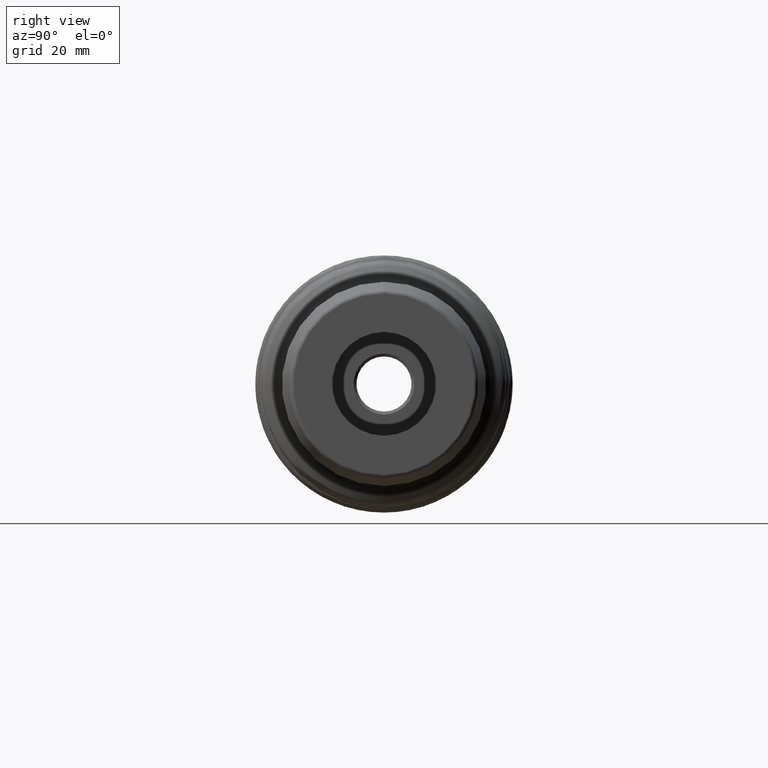
[diagram: clean part render]
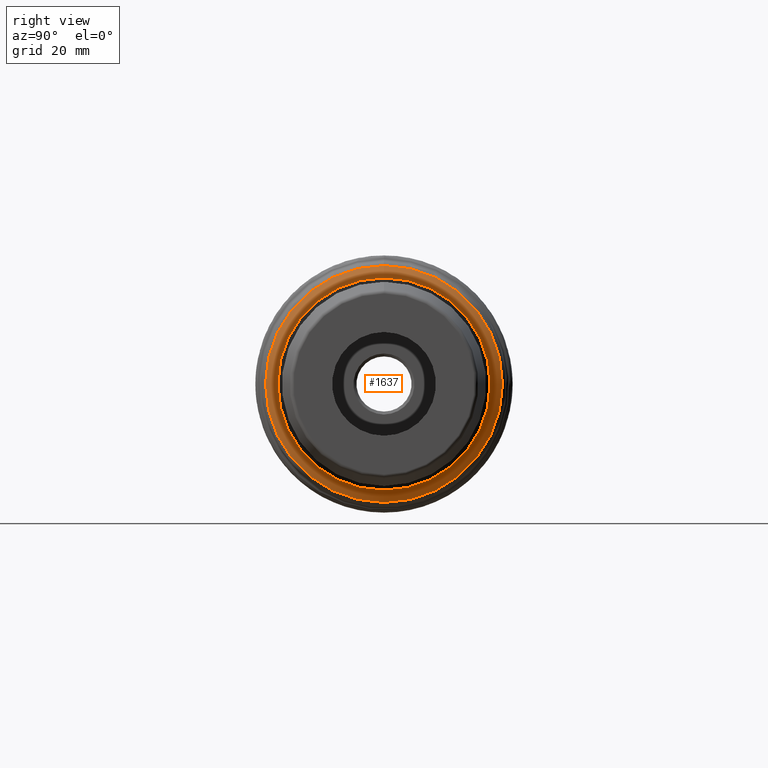
[diagram: same view with one face highlighted and labeled with its STEP entity id]
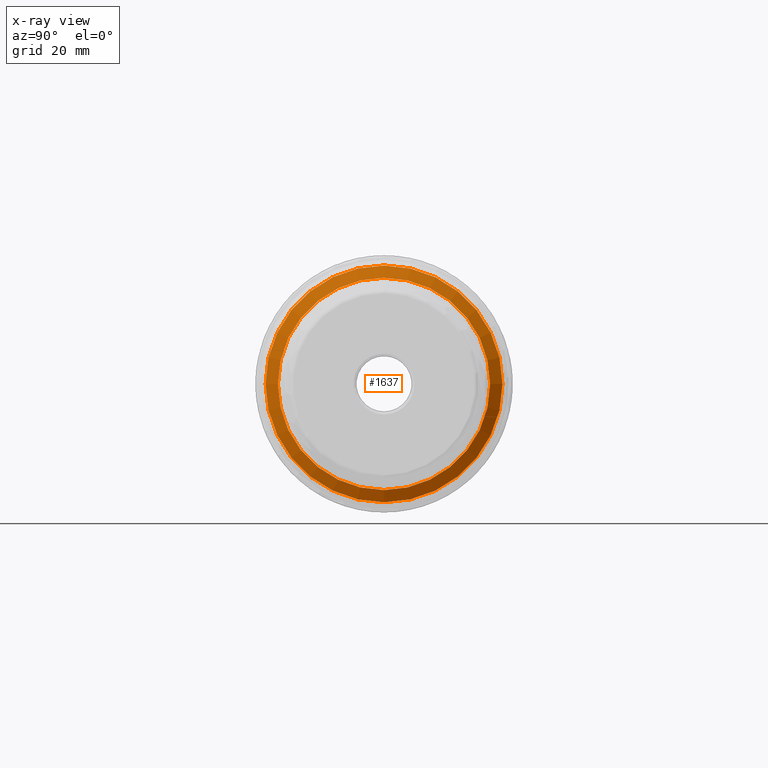
[diagram: x-ray of the same camera — body ghosted, the highlighted face saturated]
A machine part, right view. The second image highlights one B-rep face of the part: STEP entity #1637.
The next image is the same camera in x-ray: the body ghosted, the highlighted face saturated — about 0% of this face is hidden behind the body in this view.
In plain terms, the highlighted conical surface has half-angle 60 deg.
Its self-contained STEP definition (entity closure, byte-faithful):
#116=CONICAL_SURFACE('',#1758,27.5,1.0471975511966);
#136=FACE_OUTER_BOUND('',#227,.T.);
#227=EDGE_LOOP('',(#1095,#1096,#1097,#1098,#1099,#1100));
#329=LINE('',#2697,#399);
#399=VECTOR('',#2039,27.5);
#473=CIRCLE('',#1753,26.);
#477=CIRCLE('',#1757,26.);
#478=CIRCLE('',#1759,29.);
#479=CIRCLE('',#1760,29.);
#628=VERTEX_POINT('',#2686);
#629=VERTEX_POINT('',#2687);
#632=VERTEX_POINT('',#2696);
#633=VERTEX_POINT('',#2698);
#816=EDGE_CURVE('',#628,#629,#473,.T.);
#820=EDGE_CURVE('',#629,#628,#477,.T.);
#821=EDGE_CURVE('',#629,#632,#329,.T.);
#822=EDGE_CURVE('',#633,#632,#478,.T.);
#823=EDGE_CURVE('',#632,#633,#479,.T.);
#1095=ORIENTED_EDGE('',*,*,#816,.F.);
#1096=ORIENTED_EDGE('',*,*,#820,.F.);
#1097=ORIENTED_EDGE('',*,*,#821,.T.);
#1098=ORIENTED_EDGE('',*,*,#822,.F.);
#1099=ORIENTED_EDGE('',*,*,#823,.F.);
#1100=ORIENTED_EDGE('',*,*,#821,.F.);
#1637=ADVANCED_FACE('',(#136),#116,.T.);
#1753=AXIS2_PLACEMENT_3D('',#2688,#2027,#2028);
#1757=AXIS2_PLACEMENT_3D('',#2694,#2035,#2036);
#1758=AXIS2_PLACEMENT_3D('',#2695,#2037,#2038);
#1759=AXIS2_PLACEMENT_3D('',#2699,#2040,#2041);
#1760=AXIS2_PLACEMENT_3D('',#2700,#2042,#2043);
#2027=DIRECTION('center_axis',(1.,0.,0.));
#2028=DIRECTION('ref_axis',(0.,0.,1.));
#2035=DIRECTION('center_axis',(1.,0.,0.));
#2036=DIRECTION('ref_axis',(0.,0.,1.));
#2037=DIRECTION('center_axis',(-1.,0.,0.));
#2038=DIRECTION('ref_axis',(0.,0.,-1.));
#2039=DIRECTION('',(-0.5,-1.06057523872491E-16,0.866025403784438));
#2040=DIRECTION('center_axis',(-1.,0.,0.));
#2041=DIRECTION('ref_axis',(0.,0.,1.));
#2042=DIRECTION('center_axis',(-1.,0.,0.));
#2043=DIRECTION('ref_axis',(0.,0.,1.));
#2686=CARTESIAN_POINT('',(44.4226497308104,0.,-26.));
#2687=CARTESIAN_POINT('',(44.4226497308104,-3.18408167778312E-15,26.));
#2688=CARTESIAN_POINT('Origin',(44.4226497308104,-3.18408167778312E-15,
0.));
#2694=CARTESIAN_POINT('Origin',(44.4226497308104,-3.18408167778312E-15,
0.));
#2695=CARTESIAN_POINT('Origin',(43.5566243270259,0.,0.));
#2696=CARTESIAN_POINT('',(42.6905989232415,-3.55147571752732E-15,29.));
#2697=CARTESIAN_POINT('',(43.5566243270259,-3.36777869765522E-15,27.5));
#2698=CARTESIAN_POINT('',(42.6905989232415,-7.10295143505465E-15,-29.));
#2699=CARTESIAN_POINT('Origin',(42.6905989232415,-3.55147571752732E-15,
0.));
#2700=CARTESIAN_POINT('Origin',(42.6905989232415,-3.55147571752732E-15,
0.));